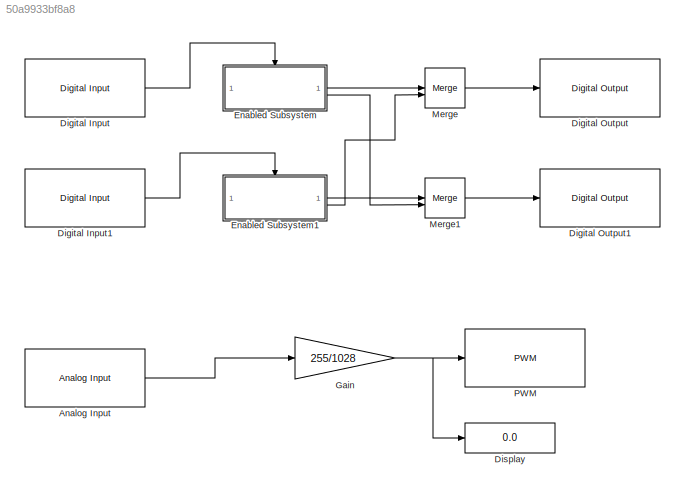
MODEL slx_50a9933bf8a8
KIND model
CONFIG AbsTol = auto
CONFIG EnableMultiTasking = on
CONFIG FixedStep = 1e-3
CONFIG MaxStep = auto
CONFIG MinStep = auto
CONFIG RelTol = 1e-3
CONFIG SampleTimeConstraint = Unconstrained
CONFIG SolverName = FixedStepDiscrete
CONFIG StartTime = 0.0
CONFIG StopTime = 10.0
BLOCK [Reference] Analog Input  REF=arduinolib/Analog Input
  SourceBlock = arduinolib/Analog Input
  SourceType = Arduino Analog Input
BLOCK [Reference] Digital Input  REF=arduinolib/Digital Input
  SourceBlock = arduinolib/Digital Input
  SourceType = Arduino Digital Input
BLOCK [Reference] Digital Input1  REF=arduinolib/Digital Input
  SourceBlock = arduinolib/Digital Input
  SourceType = Arduino Digital Input
BLOCK [Reference] Digital Output  REF=arduinolib/Digital Output
  SourceBlock = arduinolib/Digital Output
  SourceType = Arduino Digital Output
BLOCK [Reference] Digital Output1  REF=arduinolib/Digital Output
  SourceBlock = arduinolib/Digital Output
  SourceType = Arduino Digital Output
BLOCK [Display] Display
  Decimation = 1
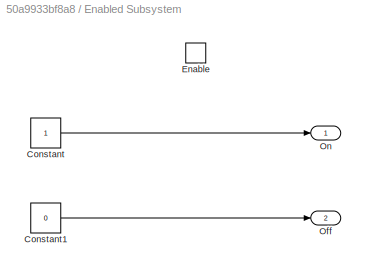
BLOCK [SubSystem] Enabled Subsystem
  TreatAsAtomicUnit = on
BLOCK [Constant] Enabled Subsystem/Constant
BLOCK [Constant] Enabled Subsystem/Constant1
  Value = 0
BLOCK [EnablePort] Enabled Subsystem/Enable
BLOCK [Outport] Enabled Subsystem/Off
  Port = 2
BLOCK [Outport] Enabled Subsystem/On
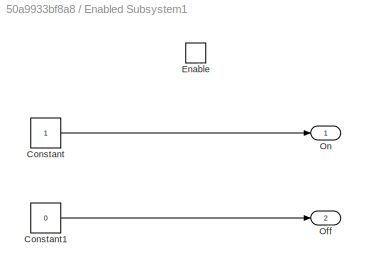
BLOCK [SubSystem] Enabled Subsystem1
  TreatAsAtomicUnit = on
BLOCK [Constant] Enabled Subsystem1/Constant
BLOCK [Constant] Enabled Subsystem1/Constant1
  Value = 0
BLOCK [EnablePort] Enabled Subsystem1/Enable
BLOCK [Outport] Enabled Subsystem1/Off
  Port = 2
BLOCK [Outport] Enabled Subsystem1/On
BLOCK [Gain] Gain
  Gain = 255/1028
BLOCK [Merge] Merge
BLOCK [Merge] Merge1
BLOCK [Reference] PWM  REF=arduinolib/PWM
  SourceBlock = arduinolib/PWM
  SourceType = Arduino PWM
LINE Analog Input:1 -> Gain:1
LINE Digital Input1:1 -> Enabled Subsystem1:enable
LINE Digital Input:1 -> Enabled Subsystem:enable
LINE Enabled Subsystem/Constant1:1 -> Enabled Subsystem/Off:1
LINE Enabled Subsystem/Constant:1 -> Enabled Subsystem/On:1
LINE Enabled Subsystem1/Constant1:1 -> Enabled Subsystem1/Off:1
LINE Enabled Subsystem1/Constant:1 -> Enabled Subsystem1/On:1
LINE Enabled Subsystem1:1 -> Merge1:1
LINE Enabled Subsystem1:2 -> Merge:2
LINE Enabled Subsystem:1 -> Merge:1
LINE Enabled Subsystem:2 -> Merge1:2
NET Gain:1 -> Display:1, PWM:1
LINE Merge1:1 -> Digital Output1:1
LINE Merge:1 -> Digital Output:1
note: NET lines group one-source signal fan-out (src -> all destinations, sorted); 1:1 wires keep LINE
